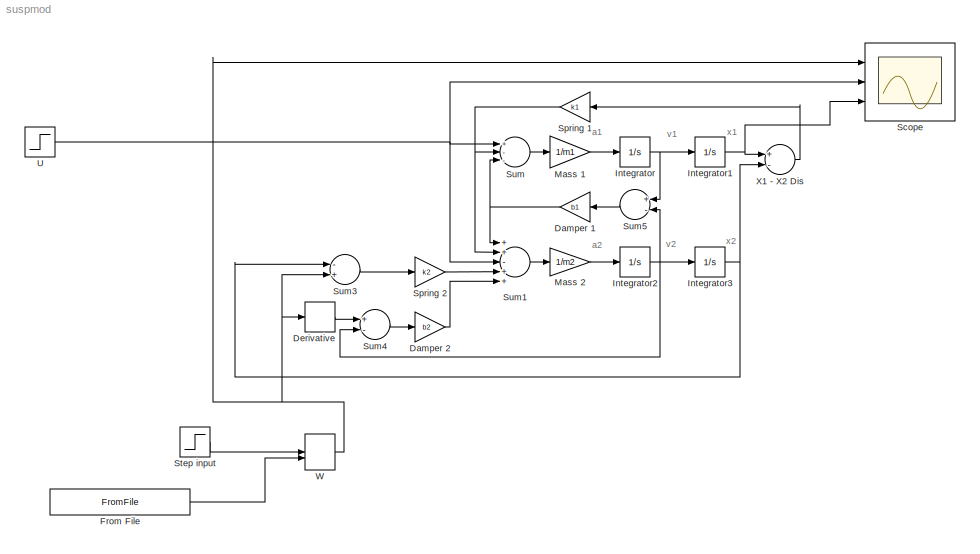
MODEL suspmod
KIND model
BLOCK [Gain] Damper 1
  Gain = b1
  SID = 2
BLOCK [Gain] Damper 2
  Gain = b2
  SID = 3
BLOCK [Derivative] Derivative
  SID = 4
BLOCK [FromFile] From File
  FileName = REC0826ch2_dis.mat
  SID = 29
  SampleTime = 1/3200
BLOCK [Integrator] Integrator
  Ports = [1, 1]
  SID = 5
BLOCK [Integrator] Integrator1
  Ports = [1, 1]
  SID = 6
BLOCK [Integrator] Integrator2
  Ports = [1, 1]
  SID = 7
BLOCK [Integrator] Integrator3
  Ports = [1, 1]
  SID = 8
BLOCK [Gain] Mass 1
  Gain = 1/m1
  SID = 9
BLOCK [Gain] Mass 2
  Gain = 1/m2
  SID = 10
BLOCK [Scope] Scope
  NumInputPorts = 3
  Ports = [3]
  SID = 27
  ScopeSpecificationString = Simulink.scopes.TimeScopeBlockCfg('CurrentConfiguration', extmgr.ConfigurationSet(extmgr.Configuration('Core','General UI',true),extmgr.Configuration('Core','Source UI',true),extmgr.Configuration('Sources','WiredSimulink',true),extmgr.Configuration('Visuals','Time Domain',true,'SerializedDisplays',{struct('MinYLimReal','-0.25758','MaxYLimReal','2.31825','YLabelReal','','MinYLimMag','0.00000','MaxY...<+1536ch>
BLOCK [Gain] Spring 1
  Gain = k1
  SID = 11
BLOCK [Gain] Spring 2
  Gain = k2
  SID = 12
BLOCK [Step] Step input
  SID = 19
  SampleTime = 1/3200
  Time = 0
  VectorParams1D = off
BLOCK [Sum] Sum
  Inputs = +--
  Ports = [3, 1]
  SID = 13
BLOCK [Sum] Sum1
  Inputs = ++-++
  Ports = [5, 1]
  SID = 14
BLOCK [Sum] Sum3
  Inputs = -+
  Ports = [2, 1]
  SID = 16
BLOCK [Sum] Sum4
  Inputs = +-
  Ports = [2, 1]
  SID = 17
BLOCK [Sum] Sum5
  Inputs = +-
  Ports = [2, 1]
  SID = 18
BLOCK [Step] U
  After = 0
  SID = 28
  SampleTime = 1/3200
  Time = 0
  VectorParams1D = off
BLOCK [ManualSwitch] W
  SID = 30
BLOCK [Sum] X1 - X2 Dis
  Inputs = +-
  Ports = [2, 1]
  SID = 15
ANNOTATION (root): a1
ANNOTATION (root): a2
ANNOTATION (root): v1
ANNOTATION (root): v2
ANNOTATION (root): x1
ANNOTATION (root): x2
NET Damper 1:1 -> Sum1:1, Sum:3
LINE Damper 2:1 -> Sum1:5
LINE Derivative:1 -> Sum4:1
LINE From File:1 -> W:2
NET Integrator1:1 -> Scope:3, X1 - X2 Dis:1
NET Integrator2:1 -> Integrator3:1, Sum4:2, Sum5:2
NET Integrator3:1 -> Sum3:1, X1 - X2 Dis:2
NET Integrator:1 -> Integrator1:1, Sum5:1
LINE Mass 1:1 -> Integrator:1
LINE Mass 2:1 -> Integrator2:1
NET Spring 1:1 -> Sum1:2, Sum:2
LINE Spring 2:1 -> Sum1:4
LINE Step input:1 -> W:1
LINE Sum1:1 -> Mass 2:1
LINE Sum3:1 -> Spring 2:1
LINE Sum4:1 -> Damper 2:1
LINE Sum5:1 -> Damper 1:1
LINE Sum:1 -> Mass 1:1
NET U:1 -> Scope:2, Sum1:3, Sum:1
NET W:1 -> Derivative:1, Scope:1, Sum3:2
LINE X1 - X2 Dis:1 -> Spring 1:1
note: NET lines group one-source signal fan-out (src -> all destinations, sorted); 1:1 wires keep LINE
